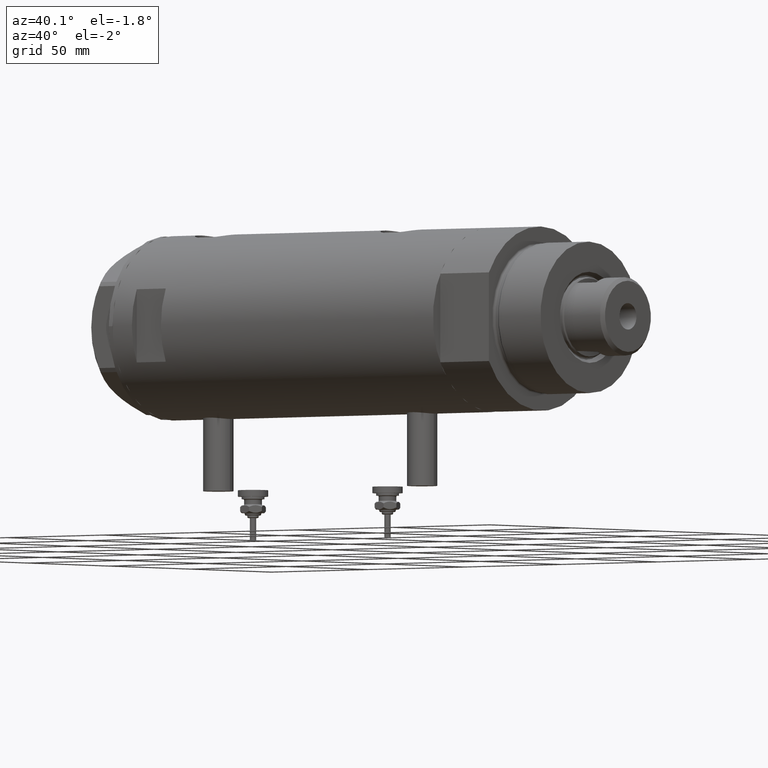
[diagram: clean part render]
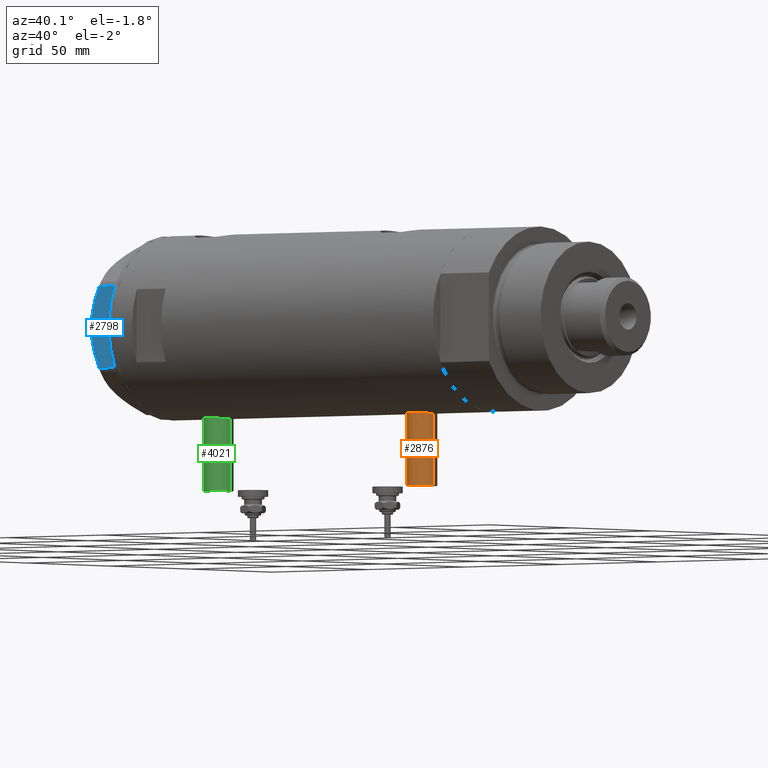
[diagram: same view with three faces highlighted in distinct colors, each labeled with its STEP entity id]
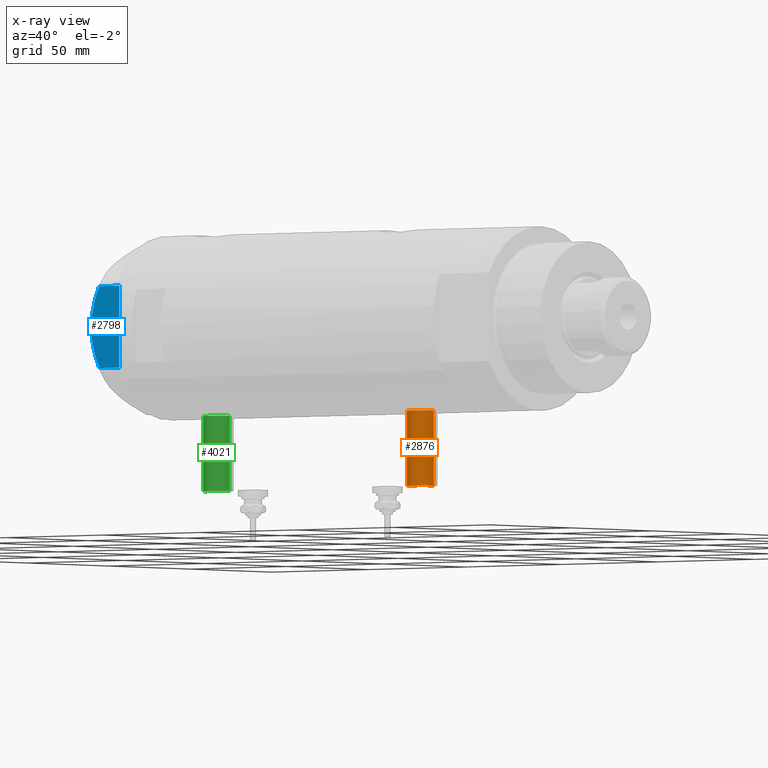
[diagram: x-ray of the same camera — body ghosted, the three highlighted faces saturated]
A machine part, auxiliary view with three faces highlighted in distinct colors.
The next image is the same camera in x-ray (body ghosted, the three faces saturated) — at least one of them is partly hidden behind the body in this view.
Their STEP definitions:

[orange] entity #2876 — the highlighted cylindrical surface (edge-blend (fillet) strip) has radius 6 mm, axis along (0, 0, 1).
#242 = CARTESIAN_POINT ( 'NONE',  ( -65.00000000000000000, 0.000000000000000000, -46.60000000000000142 ) ) ;
#397 = DIRECTION ( 'NONE',  ( 0.000000000000000000, 0.000000000000000000, 1.000000000000000000 ) ) ;
#521 = VERTEX_POINT ( 'NONE', #3669 ) ;
#569 = VERTEX_POINT ( 'NONE', #2215 ) ;
#570 = CIRCLE ( 'NONE', #5845, 6.000000000000005329 ) ;
#817 = CYLINDRICAL_SURFACE ( 'NONE', #1443, 6.000000000000005329 ) ;
#826 = EDGE_LOOP ( 'NONE', ( #1816, #3668, #5002, #1033 ) ) ;
#930 = DIRECTION ( 'NONE',  ( 0.000000000000000000, 0.000000000000000000, -1.000000000000000000 ) ) ;
#962 = VECTOR ( 'NONE', #2636, 1000.000000000000000 ) ;
#1033 = ORIENTED_EDGE ( 'NONE', *, *, #1571, .T. ) ;
#1293 = LINE ( 'NONE', #4450, #3193 ) ;
#1335 = AXIS2_PLACEMENT_3D ( 'NONE', #242, #5800, #2142 ) ;
#1349 = DIRECTION ( 'NONE',  ( -1.000000000000000000, 0.000000000000000000, 0.000000000000000000 ) ) ;
#1443 = AXIS2_PLACEMENT_3D ( 'NONE', #5478, #3688, #930 ) ;
#1571 = EDGE_CURVE ( 'NONE', #569, #5247, #570, .T. ) ;
#1816 = ORIENTED_EDGE ( 'NONE', *, *, #4170, .F. ) ;
#1984 = EDGE_CURVE ( 'NONE', #2504, #521, #3081, .T. ) ;
#2142 = DIRECTION ( 'NONE',  ( 0.000000000000000000, 0.000000000000000000, 1.000000000000000000 ) ) ;
#2215 = CARTESIAN_POINT ( 'NONE',  ( -35.29999999999999716, 0.000000000000000000, -52.60000000000000853 ) ) ;
#2504 = VERTEX_POINT ( 'NONE', #4484 ) ;
#2636 = DIRECTION ( 'NONE',  ( 1.000000000000000000, -0.000000000000000000, -0.000000000000000000 ) ) ;
#2876 = ADVANCED_FACE ( 'NONE', ( #4178 ), #817, .T. ) ;
#3081 = CIRCLE ( 'NONE', #1335, 6.000000000000005329 ) ;
#3101 = CARTESIAN_POINT ( 'NONE',  ( -65.00000000000000000, 0.000000000000000000, -52.60000000000000853 ) ) ;
#3193 = VECTOR ( 'NONE', #4071, 1000.000000000000000 ) ;
#3668 = ORIENTED_EDGE ( 'NONE', *, *, #1984, .F. ) ;
#3669 = CARTESIAN_POINT ( 'NONE',  ( -65.00000000000000000, 7.347880794884119736E-16, -40.59999999999999432 ) ) ;
#3688 = DIRECTION ( 'NONE',  ( 1.000000000000000000, -0.000000000000000000, -0.000000000000000000 ) ) ;
#3810 = EDGE_CURVE ( 'NONE', #2504, #569, #4552, .T. ) ;
#4071 = DIRECTION ( 'NONE',  ( 1.000000000000000000, -0.000000000000000000, -0.000000000000000000 ) ) ;
#4170 = EDGE_CURVE ( 'NONE', #521, #5247, #1293, .T. ) ;
#4178 = FACE_OUTER_BOUND ( 'NONE', #826, .T. ) ;
#4450 = CARTESIAN_POINT ( 'NONE',  ( -65.00000000000000000, 7.347880794884122694E-16, -40.59999999999999432 ) ) ;
#4452 = CARTESIAN_POINT ( 'NONE',  ( -35.29999999999999716, 7.347880794884119736E-16, -40.59999999999999432 ) ) ;
#4484 = CARTESIAN_POINT ( 'NONE',  ( -65.00000000000000000, 0.000000000000000000, -52.60000000000000853 ) ) ;
#4552 = LINE ( 'NONE', #3101, #962 ) ;
#5002 = ORIENTED_EDGE ( 'NONE', *, *, #3810, .T. ) ;
#5067 = CARTESIAN_POINT ( 'NONE',  ( -35.29999999999999716, 0.000000000000000000, -46.60000000000000142 ) ) ;
#5247 = VERTEX_POINT ( 'NONE', #4452 ) ;
#5478 = CARTESIAN_POINT ( 'NONE',  ( -65.00000000000000000, 0.000000000000000000, -46.60000000000000142 ) ) ;
#5800 = DIRECTION ( 'NONE',  ( -1.000000000000000000, 0.000000000000000000, 0.000000000000000000 ) ) ;
#5845 = AXIS2_PLACEMENT_3D ( 'NONE', #5067, #1349, #397 ) ;

[blue] entity #2798 — the highlighted planar face has unit normal (-0, 1, 0).
#75 = CARTESIAN_POINT ( 'NONE',  ( -30.00000000000000711, 2.830925467268496476, 14.50000000000000533 ) ) ;
#273 = DIRECTION ( 'NONE',  ( 0.000000000000000000, 0.000000000000000000, 1.000000000000000000 ) ) ;
#322 = EDGE_CURVE ( 'NONE', #4210, #3513, #5548, .T. ) ;
#393 = B_SPLINE_CURVE_WITH_KNOTS ( 'NONE', 3,
 ( #1031, #3756, #5158, #3272, #2364, #978, #5578, #5055, #75, #1903 ),
 .UNSPECIFIED., .F., .F.,
 ( 4, 2, 2, 2, 4 ),
 ( 0.04501738275285960267, 0.04922240792374713014, 0.05132492050919089388, 0.05342743309463465068, 0.06183748343640969869 ),
 .UNSPECIFIED. ) ;
#961 = CARTESIAN_POINT ( 'NONE',  ( -30.00000000000000000, -16.20050807568876294, 0.000000000000000000 ) ) ;
#978 = CARTESIAN_POINT ( 'NONE',  ( -30.00000000000000000, 9.655259153795977767, 12.99093232113973606 ) ) ;
#1031 = CARTESIAN_POINT ( 'NONE',  ( -30.00000000000000000, 16.20050807568875584, 10.40518423703603546 ) ) ;
#1065 = AXIS2_PLACEMENT_3D ( 'NONE', #1258, #3361, #3942 ) ;
#1108 = CARTESIAN_POINT ( 'NONE',  ( -30.00000000000000000, 0.000000000000000000, 14.50000000000000000 ) ) ;
#1215 = CARTESIAN_POINT ( 'NONE',  ( -30.00000000000000000, -6.973771051792319042, 13.72753822183687511 ) ) ;
#1258 = CARTESIAN_POINT ( 'NONE',  ( -30.00000000000000000, 17.32050807568877460, 14.50000000000000000 ) ) ;
#1338 = CARTESIAN_POINT ( 'NONE',  ( -30.00000000000000000, 0.000000000000000000, 14.50000000000000000 ) ) ;
#1419 = DIRECTION ( 'NONE',  ( 0.000000000000000000, -1.000000000000000000, 0.000000000000000000 ) ) ;
#1426 = ORIENTED_EDGE ( 'NONE', *, *, #4282, .F. ) ;
#1454 = B_SPLINE_CURVE_WITH_KNOTS ( 'NONE', 3,
 ( #1108, #2075, #2579, #4011, #5290, #4857, #1215, #2492, #4460, #5795, #2138, #2161, #1674, #3456 ),
 .UNSPECIFIED., .F., .F.,
 ( 4, 2, 2, 2, 2, 2, 4 ),
 ( 0.06183748343640969869, 0.06393495742991751885, 0.06603243142342535288, 0.07022737941044099319, 0.07442232739745664738, 0.07651980139096448141, 0.07861727538447230157 ),
 .UNSPECIFIED. ) ;
#1549 = VECTOR ( 'NONE', #273, 1000.000000000000000 ) ;
#1674 = CARTESIAN_POINT ( 'NONE',  ( -29.99999999999999289, -15.56759648729806322, 10.70591879357992227 ) ) ;
#1772 = DIRECTION ( 'NONE',  ( 0.000000000000000000, 0.000000000000000000, -1.000000000000000000 ) ) ;
#1809 = ORIENTED_EDGE ( 'NONE', *, *, #5597, .T. ) ;
#1893 = CARTESIAN_POINT ( 'NONE',  ( -30.00000000000000000, 16.20050807568875584, 14.50000000000000000 ) ) ;
#1903 = CARTESIAN_POINT ( 'NONE',  ( -30.00000000000000000, 0.000000000000000000, 14.50000000000000000 ) ) ;
#2057 = EDGE_LOOP ( 'NONE', ( #1426, #2433, #2296, #1809, #5167 ) ) ;
#2075 = CARTESIAN_POINT ( 'NONE',  ( -30.00000000000000000, -0.7060353153488233557, 14.49999999999999822 ) ) ;
#2138 = CARTESIAN_POINT ( 'NONE',  ( -29.99999999999999289, -13.63320717147166405, 11.55272916346384804 ) ) ;
#2161 = CARTESIAN_POINT ( 'NONE',  ( -29.99999999999999289, -14.92797448277034533, 10.99622797424084553 ) ) ;
#2219 = CARTESIAN_POINT ( 'NONE',  ( -30.00000000000000000, 16.20050807568875584, 10.40518423703603546 ) ) ;
#2296 = ORIENTED_EDGE ( 'NONE', *, *, #322, .T. ) ;
#2364 = CARTESIAN_POINT ( 'NONE',  ( -30.00000000000000355, 10.99748736931232607, 12.55407623651775495 ) ) ;
#2433 = ORIENTED_EDGE ( 'NONE', *, *, #5329, .T. ) ;
#2492 = CARTESIAN_POINT ( 'NONE',  ( -29.99999999999999645, -9.671229349009038856, 13.00645148086949554 ) ) ;
#2579 = CARTESIAN_POINT ( 'NONE',  ( -30.00000000000000355, -1.418661615092686290, 14.47469700449902952 ) ) ;
#2692 = CARTESIAN_POINT ( 'NONE',  ( -30.00000000000000000, 16.20050807568875584, 0.000000000000000000 ) ) ;
#2798 = ADVANCED_FACE ( 'NONE', ( #2920 ), #3397, .F. ) ;
#2920 = FACE_OUTER_BOUND ( 'NONE', #2057, .T. ) ;
#3272 = CARTESIAN_POINT ( 'NONE',  ( -30.00000000000000000, 11.66725319103952607, 12.31690447555093293 ) ) ;
#3361 = DIRECTION ( 'NONE',  ( 1.000000000000000000, 0.000000000000000000, -0.000000000000000000 ) ) ;
#3397 = PLANE ( 'NONE',  #1065 ) ;
#3456 = CARTESIAN_POINT ( 'NONE',  ( -30.00000000000000000, -16.20050807568876294, 10.40518423703603901 ) ) ;
#3469 = CARTESIAN_POINT ( 'NONE',  ( -30.00000000000000000, -16.20050807568876294, 14.50000000000000000 ) ) ;
#3513 = VERTEX_POINT ( 'NONE', #961 ) ;
#3698 = VERTEX_POINT ( 'NONE', #2219 ) ;
#3756 = CARTESIAN_POINT ( 'NONE',  ( -30.00000000000001421, 14.93680064777130312, 11.00564802993687508 ) ) ;
#3929 = LINE ( 'NONE', #3469, #1549 ) ;
#3942 = DIRECTION ( 'NONE',  ( -0.000000000000000000, 0.000000000000000000, -1.000000000000000000 ) ) ;
#4011 = CARTESIAN_POINT ( 'NONE',  ( -29.99999999999999645, -2.827567415490778835, 14.37523681947611109 ) ) ;
#4210 = VERTEX_POINT ( 'NONE', #2692 ) ;
#4282 = EDGE_CURVE ( 'NONE', #3698, #4793, #393, .T. ) ;
#4318 = VECTOR ( 'NONE', #1419, 1000.000000000000000 ) ;
#4460 = CARTESIAN_POINT ( 'NONE',  ( -30.00000000000000000, -11.00230860792644982, 12.56933207488871673 ) ) ;
#4666 = LINE ( 'NONE', #1893, #4926 ) ;
#4718 = EDGE_CURVE ( 'NONE', #4793, #5577, #1454, .T. ) ;
#4732 = CARTESIAN_POINT ( 'NONE',  ( -30.00000000000000000, 17.32050807568877460, 0.000000000000000000 ) ) ;
#4750 = CARTESIAN_POINT ( 'NONE',  ( -30.00000000000000000, -16.20050807568876294, 10.40518423703603901 ) ) ;
#4793 = VERTEX_POINT ( 'NONE', #1338 ) ;
#4857 = CARTESIAN_POINT ( 'NONE',  ( -29.99999999999999289, -5.607365453019637513, 14.01139032121647965 ) ) ;
#4926 = VECTOR ( 'NONE', #1772, 1000.000000000000000 ) ;
#5055 = CARTESIAN_POINT ( 'NONE',  ( -30.00000000000000000, 5.593935073701701732, 14.09487059093540573 ) ) ;
#5158 = CARTESIAN_POINT ( 'NONE',  ( -30.00000000000000355, 13.64854889245356695, 11.56384586935411996 ) ) ;
#5167 = ORIENTED_EDGE ( 'NONE', *, *, #4718, .F. ) ;
#5290 = CARTESIAN_POINT ( 'NONE',  ( -30.00000000000000000, -3.526431665117130798, 14.30125973663612626 ) ) ;
#5329 = EDGE_CURVE ( 'NONE', #3698, #4210, #4666, .T. ) ;
#5548 = LINE ( 'NONE', #4732, #4318 ) ;
#5577 = VERTEX_POINT ( 'NONE', #4750 ) ;
#5578 = CARTESIAN_POINT ( 'NONE',  ( -30.00000000000000711, 8.981118657900116986, 13.19130745470829247 ) ) ;
#5597 = EDGE_CURVE ( 'NONE', #3513, #5577, #3929, .T. ) ;
#5795 = CARTESIAN_POINT ( 'NONE',  ( -29.99999999999999645, -12.97715359595204809, 11.81918444541430624 ) ) ;

[green] entity #4021 — the highlighted cylindrical surface (edge-blend (fillet) strip) has radius 6 mm, axis along (0, 0, 1).
#217 = CARTESIAN_POINT ( 'NONE',  ( -35.29999999999999716, 7.347880794884108889E-16, 64.90000000000000568 ) ) ;
#306 = AXIS2_PLACEMENT_3D ( 'NONE', #2604, #4791, #3947 ) ;
#418 = DIRECTION ( 'NONE',  ( 0.000000000000000000, 0.000000000000000000, 1.000000000000000000 ) ) ;
#437 = ORIENTED_EDGE ( 'NONE', *, *, #5092, .T. ) ;
#621 = CYLINDRICAL_SURFACE ( 'NONE', #1150, 5.999999999999998224 ) ;
#624 = ORIENTED_EDGE ( 'NONE', *, *, #3418, .F. ) ;
#686 = CIRCLE ( 'NONE', #3006, 5.999999999999998224 ) ;
#788 = VERTEX_POINT ( 'NONE', #3714 ) ;
#1103 = VERTEX_POINT ( 'NONE', #1431 ) ;
#1112 = ORIENTED_EDGE ( 'NONE', *, *, #4798, .F. ) ;
#1150 = AXIS2_PLACEMENT_3D ( 'NONE', #5669, #2456, #1156 ) ;
#1156 = DIRECTION ( 'NONE',  ( 0.000000000000000000, 0.000000000000000000, -1.000000000000000000 ) ) ;
#1180 = EDGE_CURVE ( 'NONE', #1103, #788, #4300, .T. ) ;
#1232 = VERTEX_POINT ( 'NONE', #5373 ) ;
#1431 = CARTESIAN_POINT ( 'NONE',  ( -65.00000000000000000, 0.000000000000000000, 52.90000000000000568 ) ) ;
#2019 = VERTEX_POINT ( 'NONE', #217 ) ;
#2394 = CARTESIAN_POINT ( 'NONE',  ( -65.00000000000000000, 0.000000000000000000, 52.90000000000000568 ) ) ;
#2456 = DIRECTION ( 'NONE',  ( 1.000000000000000000, -0.000000000000000000, -0.000000000000000000 ) ) ;
#2516 = CIRCLE ( 'NONE', #306, 5.999999999999998224 ) ;
#2604 = CARTESIAN_POINT ( 'NONE',  ( -35.29999999999999716, 0.000000000000000000, 58.89999999999999858 ) ) ;
#2868 = LINE ( 'NONE', #4174, #3363 ) ;
#3006 = AXIS2_PLACEMENT_3D ( 'NONE', #3130, #3197, #418 ) ;
#3130 = CARTESIAN_POINT ( 'NONE',  ( -65.00000000000000000, 0.000000000000000000, 58.89999999999999858 ) ) ;
#3197 = DIRECTION ( 'NONE',  ( -1.000000000000000000, 0.000000000000000000, 0.000000000000000000 ) ) ;
#3363 = VECTOR ( 'NONE', #3804, 1000.000000000000000 ) ;
#3418 = EDGE_CURVE ( 'NONE', #1232, #2019, #2868, .T. ) ;
#3714 = CARTESIAN_POINT ( 'NONE',  ( -35.29999999999999716, 0.000000000000000000, 52.90000000000000568 ) ) ;
#3788 = EDGE_LOOP ( 'NONE', ( #624, #1112, #3903, #437 ) ) ;
#3804 = DIRECTION ( 'NONE',  ( 1.000000000000000000, -0.000000000000000000, -0.000000000000000000 ) ) ;
#3855 = FACE_OUTER_BOUND ( 'NONE', #3788, .T. ) ;
#3903 = ORIENTED_EDGE ( 'NONE', *, *, #1180, .T. ) ;
#3947 = DIRECTION ( 'NONE',  ( 0.000000000000000000, 0.000000000000000000, 1.000000000000000000 ) ) ;
#4021 = ADVANCED_FACE ( 'NONE', ( #3855 ), #621, .T. ) ;
#4174 = CARTESIAN_POINT ( 'NONE',  ( -65.00000000000000000, 7.347880794884112834E-16, 64.90000000000000568 ) ) ;
#4300 = LINE ( 'NONE', #2394, #5097 ) ;
#4791 = DIRECTION ( 'NONE',  ( -1.000000000000000000, 0.000000000000000000, 0.000000000000000000 ) ) ;
#4798 = EDGE_CURVE ( 'NONE', #1103, #1232, #686, .T. ) ;
#5092 = EDGE_CURVE ( 'NONE', #788, #2019, #2516, .T. ) ;
#5097 = VECTOR ( 'NONE', #5229, 1000.000000000000000 ) ;
#5229 = DIRECTION ( 'NONE',  ( 1.000000000000000000, -0.000000000000000000, -0.000000000000000000 ) ) ;
#5373 = CARTESIAN_POINT ( 'NONE',  ( -65.00000000000000000, 7.347880794884108889E-16, 64.90000000000000568 ) ) ;
#5669 = CARTESIAN_POINT ( 'NONE',  ( -65.00000000000000000, 0.000000000000000000, 58.89999999999999858 ) ) ;